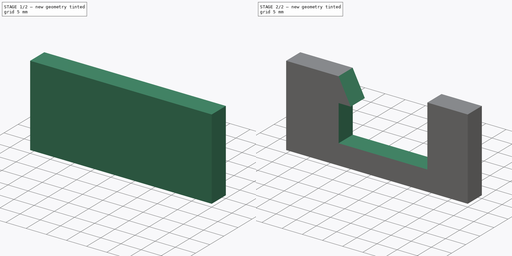
[diagram: build sequence overview — one tinted view per stage of 2, left to right]
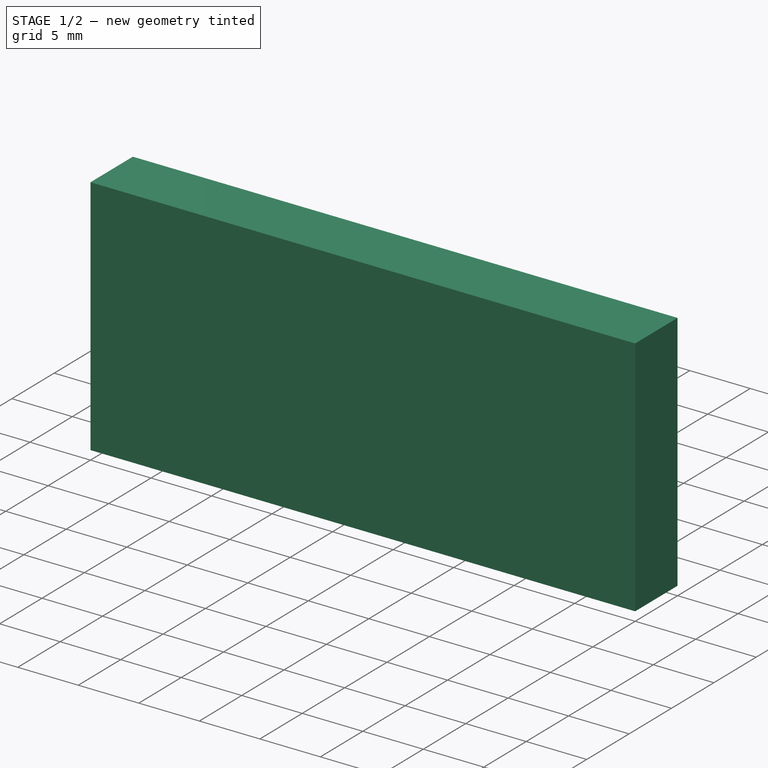
[diagram: stage 1 of 2 — iso view after this stage's code; geometry added in this stage tinted green]
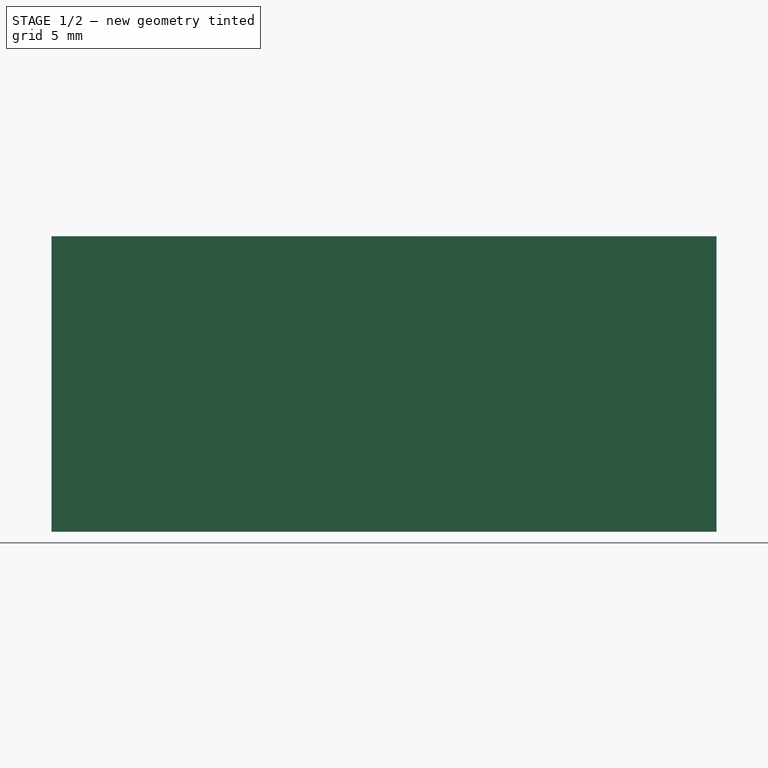
[diagram: stage 1 of 2 — front view after this stage's code; geometry added in this stage tinted green]
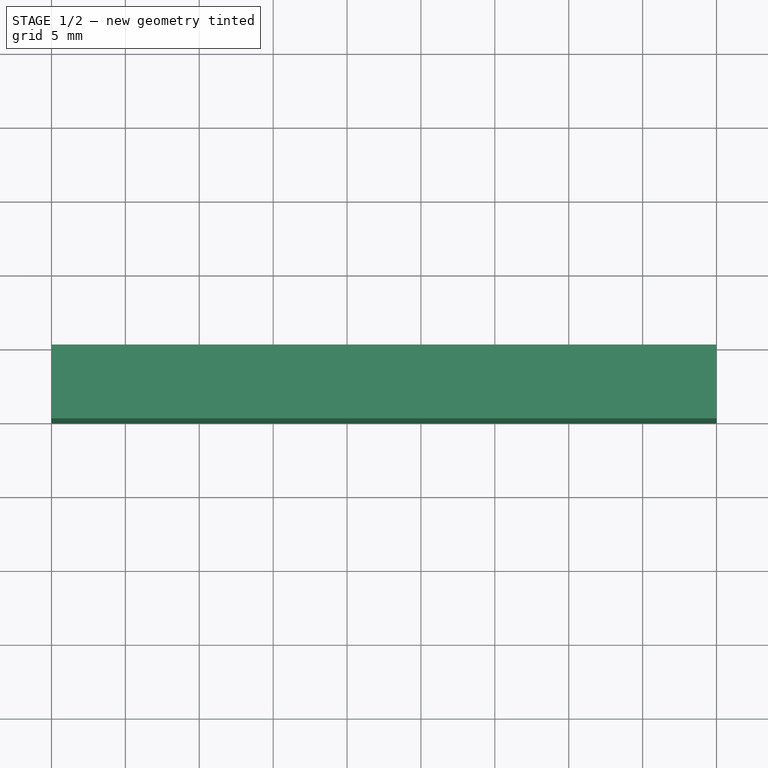
[diagram: stage 1 of 2 — top view after this stage's code; geometry added in this stage tinted green]
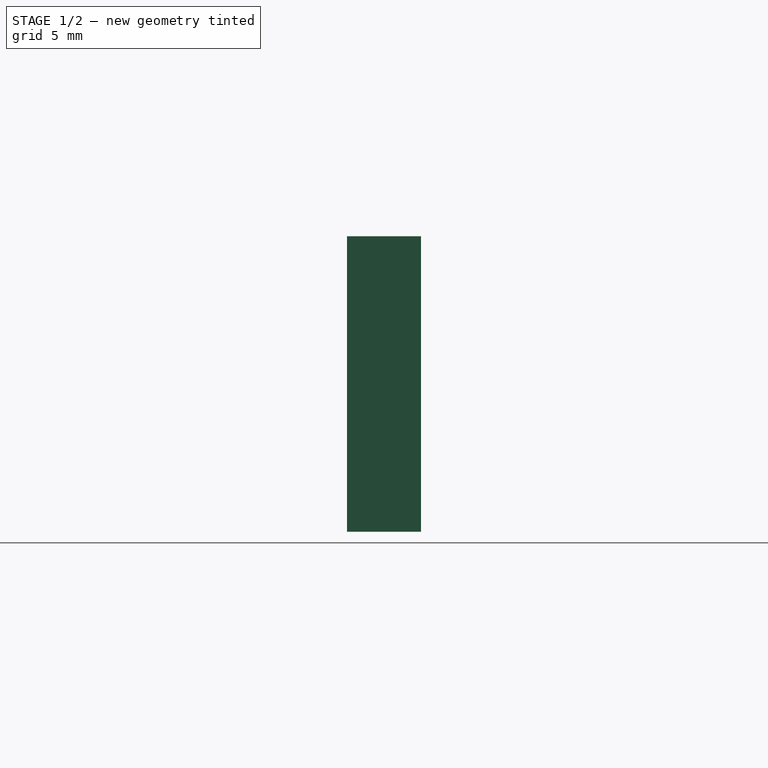
[diagram: stage 1 of 2 — right view after this stage's code; geometry added in this stage tinted green]
FCSTD DOCUMENT  (FreeCAD 0.19R24291 (Git))
Label: crochet moduleTEST
License: All rights reserved
LicenseURL: http://en.wikipedia.org/wiki/All_rights_reserved
objects: Sketcher::SketchObject×2, PartDesign::Pad×1, PartDesign::Plane×1, PartDesign::Pocket×1, PartDesign::Body×1
note: 8 computed .brp shape members not serialized (recipe doc carries the construction recipe); baked Part::Feature solids carry a one-line shape summary decoded from their .brp

FEATURE [Sketcher::SketchObject] Sketch
  FullyConstrained = false
  MapMode = 5
  Support = -> [XY_Plane]
  sketch-geometry (6):
    g0: LineSegment StartX=0 StartY=0 StartZ=0 EndX=45 EndY=0 EndZ=0
    g1: LineSegment StartX=48.9999 StartY=-13.0567 StartZ=0 EndX=48.9999 EndY=-13.0567 EndZ=0
    g2: LineSegment StartX=0 StartY=-5 StartZ=0 EndX=0 EndY=0 EndZ=0
    g3: LineSegment StartX=45 StartY=-5 StartZ=0 EndX=0 EndY=-5 EndZ=0
    g4: LineSegment StartX=20 StartY=9.61432 StartZ=0 EndX=20 EndY=-57.7737 EndZ=0
    g5: LineSegment StartX=45 StartY=0 StartZ=0 EndX=45 EndY=-5 EndZ=0
  constraints (13):
    c: Coincident(g-1,g0)
    c: Horizontal(g0)
    c: Coincident(g2,g0)
    c: Vertical(g2)
    c: Horizontal(g3)
    c: Coincident(g2,g3)
    c: DistanceY(g2,g0) = 5
    c: Vertical(g4)
    c: DistanceX(g0,g3) = 45
    c: DistanceX(g4,g3) = 25
    c: Coincident(g5,g0)
    c: Coincident(g5,g3)
    c: Vertical(g5)
FEATURE [PartDesign::Pad] Pad
  AllowMultiFace = false
  Direction = (1,1,1)
  Length = 20
  Length2 = 100
  Profile = -> Sketch
  Type = 0
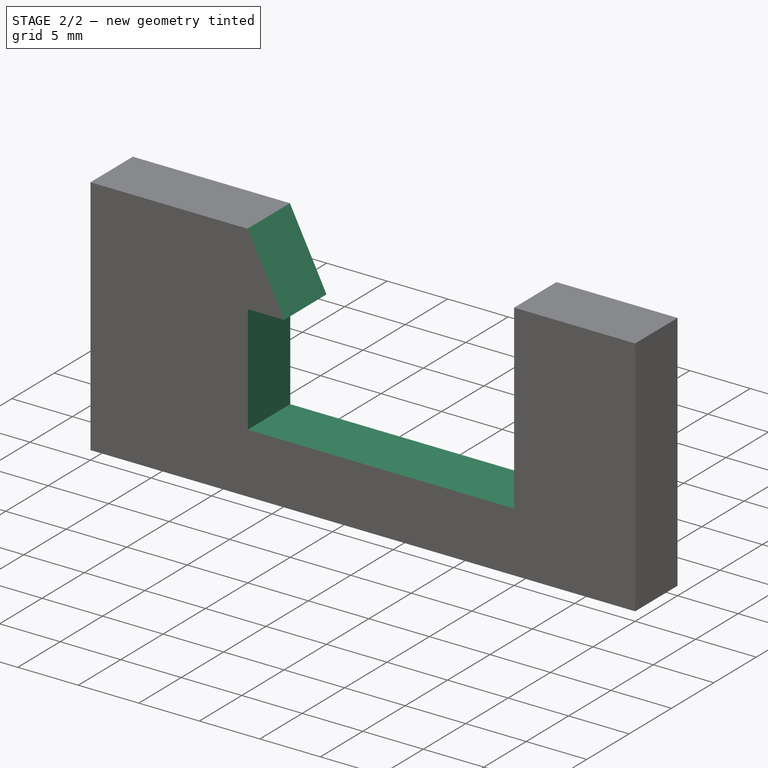
[diagram: stage 2 of 2 — iso view after this stage's code; geometry added in this stage tinted green]
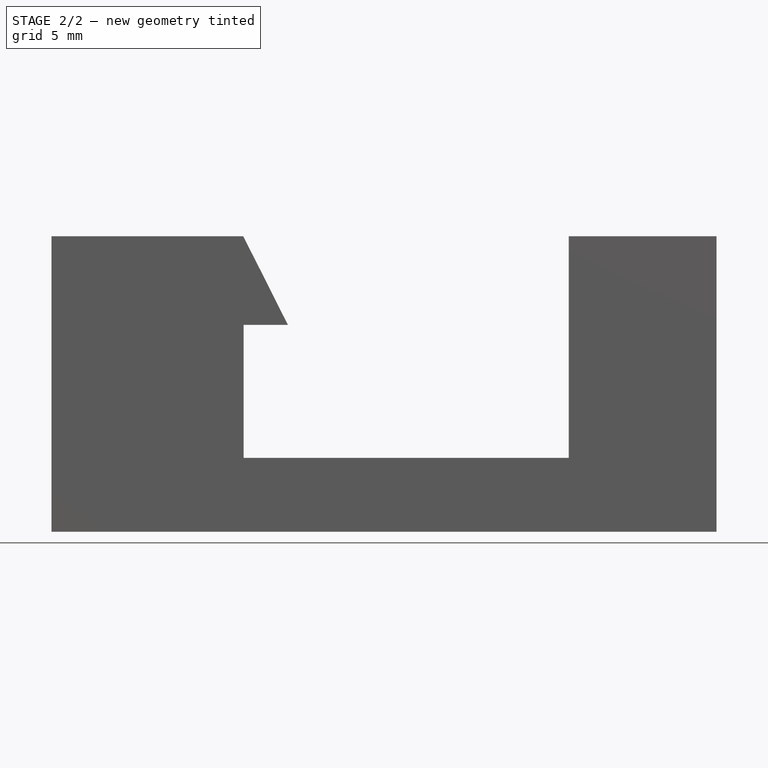
[diagram: stage 2 of 2 — front view after this stage's code; geometry added in this stage tinted green]
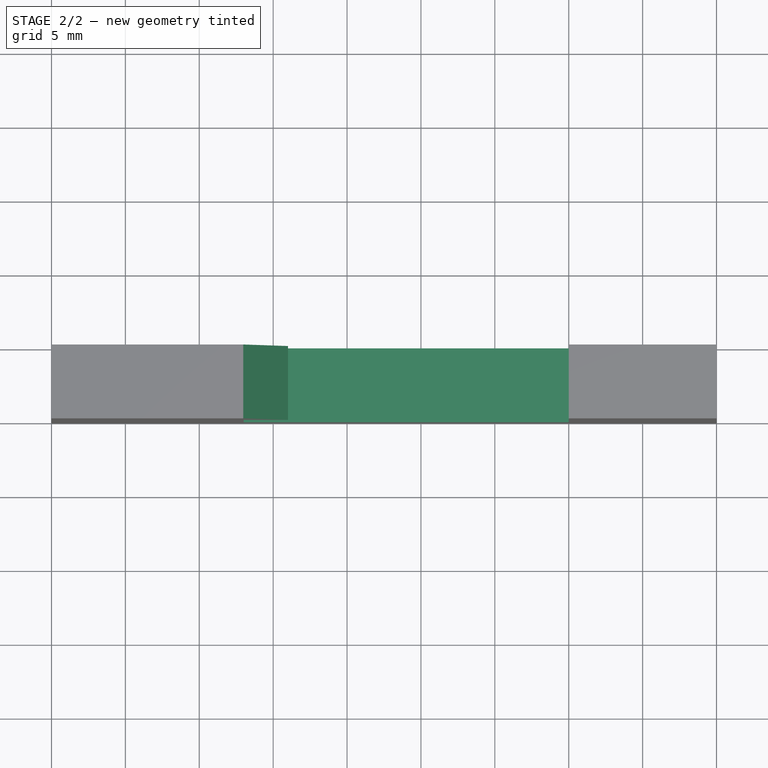
[diagram: stage 2 of 2 — top view after this stage's code; geometry added in this stage tinted green]
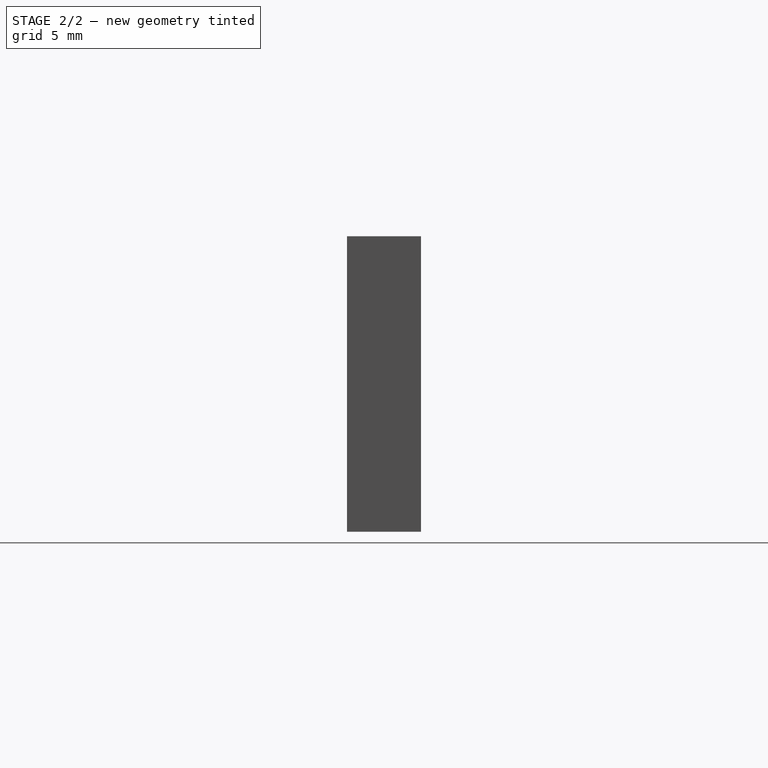
[diagram: stage 2 of 2 — right view after this stage's code; geometry added in this stage tinted green]
FEATURE [PartDesign::Plane] DatumPlane
  Length = 86.1654
  MapMode = 5
  Placement = pos=(0,0,0) rot=(0,0.707107,0.707107;3.14159rad)
  ResizeMode = 0
  Support = -> [Pad]
  Width = 62.1655
FEATURE [Sketcher::SketchObject] Sketch001
  ExternalGeometry = -> [Sketch]
  FullyConstrained = false
  MapMode = 5
  Placement = pos=(0,0,0) rot=(0,0.707107,0.707107;3.14159rad)
  Support = -> [DatumPlane]
  sketch-geometry (10):
    g0: LineSegment StartX=0 StartY=32 StartZ=0 EndX=-35 EndY=32 EndZ=0
    g1: LineSegment StartX=-35 StartY=32 StartZ=0 EndX=-35 EndY=5 EndZ=0
    g2: LineSegment StartX=-35 StartY=5 StartZ=0 EndX=-13 EndY=5 EndZ=0
    g3: LineSegment StartX=-13 StartY=5 StartZ=0 EndX=-13 EndY=14 EndZ=0
    g4: LineSegment StartX=-13 StartY=14 StartZ=0 EndX=-16 EndY=14 EndZ=0
    g5: LineSegment StartX=-11.4643 StartY=23 StartZ=0 EndX=0 EndY=23 EndZ=0
    g6: LineSegment StartX=0 StartY=23 StartZ=0 EndX=0 EndY=32 EndZ=0
    g7: LineSegment StartX=-35 StartY=18.5 StartZ=0 EndX=-1.79088 EndY=18.5 EndZ=0
    g8: GeomPoint X=-11.4643 Y=23 Z=0
    g9: LineSegment StartX=-11.4643 StartY=23 StartZ=0 EndX=-16 EndY=14 EndZ=0
  constraints (27):
    c: PointOnObject(g0,g-2)
    c: Horizontal(g0)
    c: Coincident(g0,g1)
    c: Vertical(g1)
    c: Coincident(g1,g2)
    c: Horizontal(g2)
    c: Coincident(g2,g3)
    c: Coincident(g3,g4)
    c: Horizontal(g4)
    c: Horizontal(g5)
    c: Coincident(g5,g6)
    c: Vertical(g6)
    c: Vertical(g3)
    c: Coincident(g6,g0)
    c: DistanceY(g3,g3) = 9
    c: DistanceY(g6,g6) = 9
    c: DistanceX(g4,g3) = 3
    c: Horizontal(g7)
    c: Symmetric(g0,g1,g7)
    c: DistanceX(g-3,g1) = 10
    c: PointOnObject(g8,g5)
    c: Coincident(g9,g8)
    c: Coincident(g9,g4)
    c: PointOnObject(g5,g9)
    c: DistanceX(g2,g2) = 22
    c: DistanceY(g3,g5) = 9
    c: DistanceY(g-1,g2) = 5
FEATURE [PartDesign::Pocket] Pocket
  AllowMultiFace = false
  BaseFeature = -> Pad
  Length = 5
  Length2 = 100
  Profile = -> Sketch001
  Type = 1
FEATURE [PartDesign::Body] Body
  Group = -> [Sketch,Pad,DatumPlane,Sketch001,Pocket]
  Origin = -> Origin
  Tip = -> Pocket
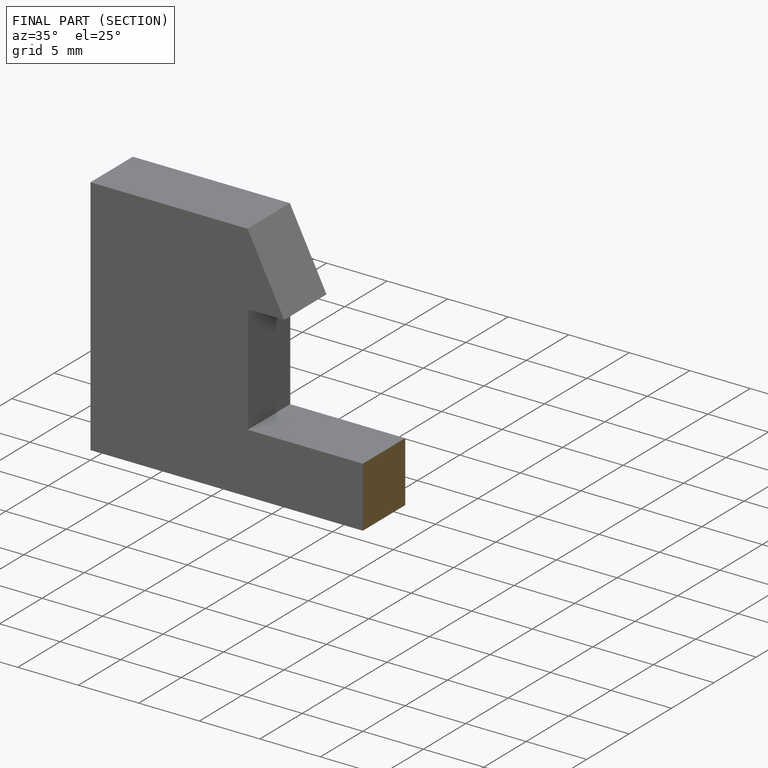
[diagram: finished part — half-section view (interior)]
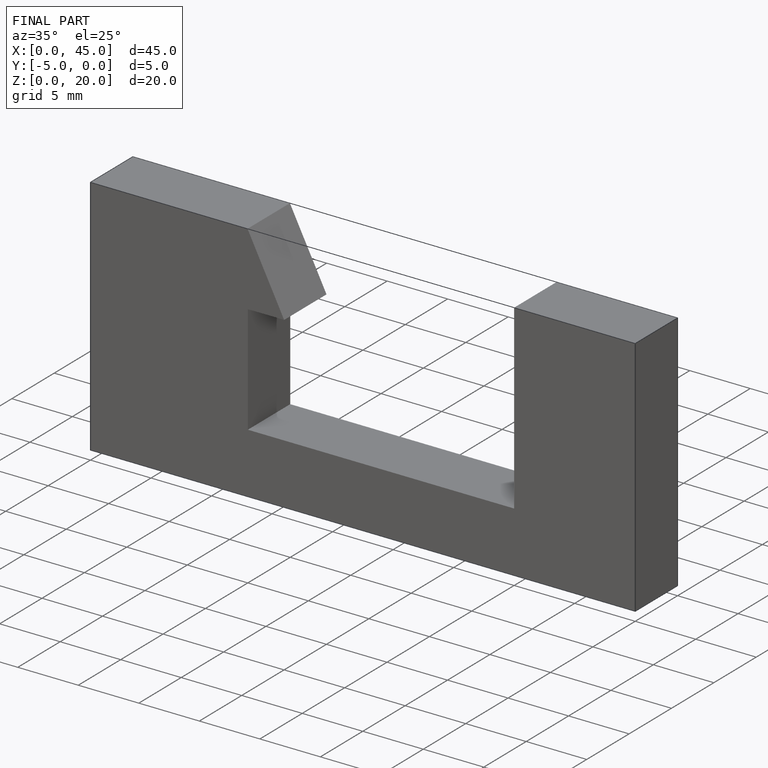
[diagram: finished part — iso view with bounding-box wireframe]
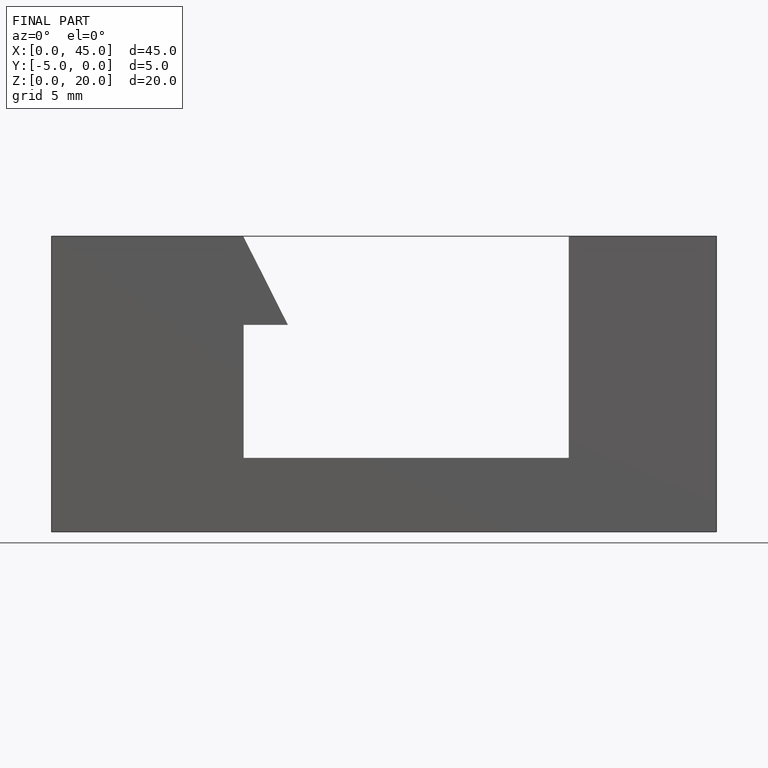
[diagram: finished part — front view with bounding-box wireframe]
